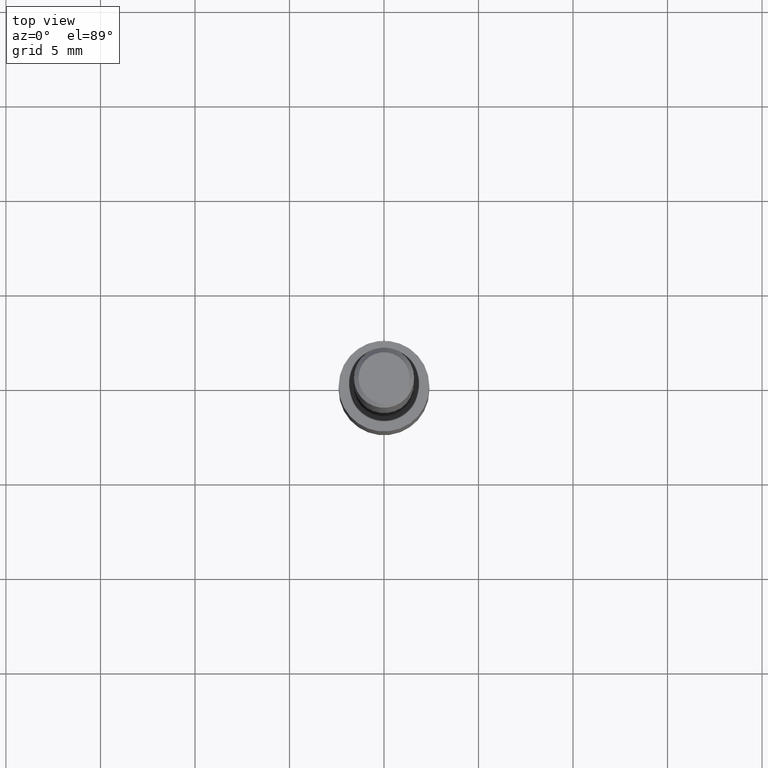
[diagram: clean part render]
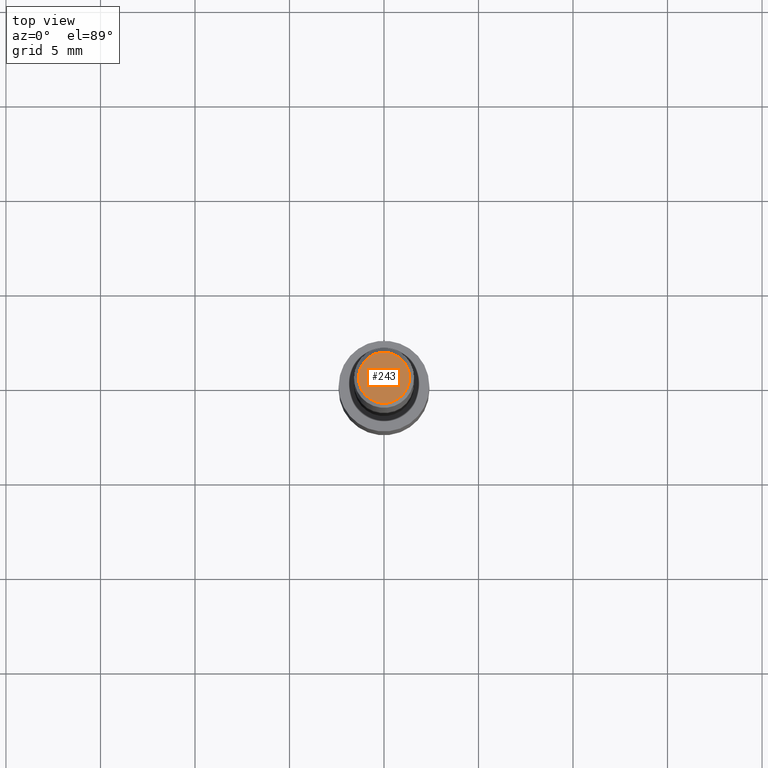
[diagram: same view with one face highlighted and labeled with its STEP entity id]
A machine part, top view. The second image highlights one B-rep face of the part: STEP entity #243.
In plain terms, the highlighted planar face has unit normal (0, -0, -1).
Its self-contained STEP definition (entity closure, byte-faithful):
#8 = CARTESIAN_POINT ( 'NONE',  ( -0.05312499999999999861, 3.873362110279099094E-16, 3.061616995216862494E-21 ) ) ;
#13 = ORIENTED_EDGE ( 'NONE', *, *, #129, .T. ) ;
#39 = CARTESIAN_POINT ( 'NONE',  ( -7.487088864773345706E-50, 1.068957861474247695E-35, 3.061616997868395197E-21 ) ) ;
#41 = DIRECTION ( 'NONE',  ( -2.445468806185136597E-29, 3.491481338843145583E-15, 1.000000000000000000 ) ) ;
#47 = AXIS2_PLACEMENT_3D ( 'NONE', #39, #69, #207 ) ;
#60 = VERTEX_POINT ( 'NONE', #97 ) ;
#65 = EDGE_CURVE ( 'NONE', #310, #60, #299, .T. ) ;
#69 = DIRECTION ( 'NONE',  ( -2.445468806185136597E-29, 3.491481338843145583E-15, 1.000000000000000000 ) ) ;
#84 = ORIENTED_EDGE ( 'NONE', *, *, #65, .T. ) ;
#97 = CARTESIAN_POINT ( 'NONE',  ( 0.05312499999999999861, -4.129888592719939842E-16, 3.061617000609493422E-21 ) ) ;
#98 = PLANE ( 'NONE',  #339 ) ;
#100 = AXIS2_PLACEMENT_3D ( 'NONE', #176, #41, #257 ) ;
#129 = EDGE_CURVE ( 'NONE', #60, #310, #156, .T. ) ;
#149 = DIRECTION ( 'NONE',  ( 2.438088387897960049E-29, -3.491481338843145188E-15, -1.000000000000000000 ) ) ;
#156 = CIRCLE ( 'NONE', #100, 0.05312499999999999861 ) ;
#176 = CARTESIAN_POINT ( 'NONE',  ( -7.487088864773345706E-50, 1.068957861474247695E-35, 3.061616997868395197E-21 ) ) ;
#207 = DIRECTION ( 'NONE',  ( 1.000000000000000000, -6.982962677686266711E-15, 4.876176628004948512E-29 ) ) ;
#222 = EDGE_LOOP ( 'NONE', ( #84, #13 ) ) ;
#243 = ADVANCED_FACE ( 'NONE', ( #315 ), #98, .F. ) ;
#257 = DIRECTION ( 'NONE',  ( 1.000000000000000000, -6.982962677686266711E-15, 4.876176628004948512E-29 ) ) ;
#263 = DIRECTION ( 'NONE',  ( -1.000000000000000000, 6.982962677686265922E-15, -4.876176775795935793E-29 ) ) ;
#291 = CARTESIAN_POINT ( 'NONE',  ( -3.743544432386672853E-50, 5.344789307371238476E-36, 1.530808498934197599E-21 ) ) ;
#299 = CIRCLE ( 'NONE', #47, 0.05312499999999999861 ) ;
#310 = VERTEX_POINT ( 'NONE', #8 ) ;
#315 = FACE_OUTER_BOUND ( 'NONE', #222, .T. ) ;
#339 = AXIS2_PLACEMENT_3D ( 'NONE', #291, #149, #263 ) ;